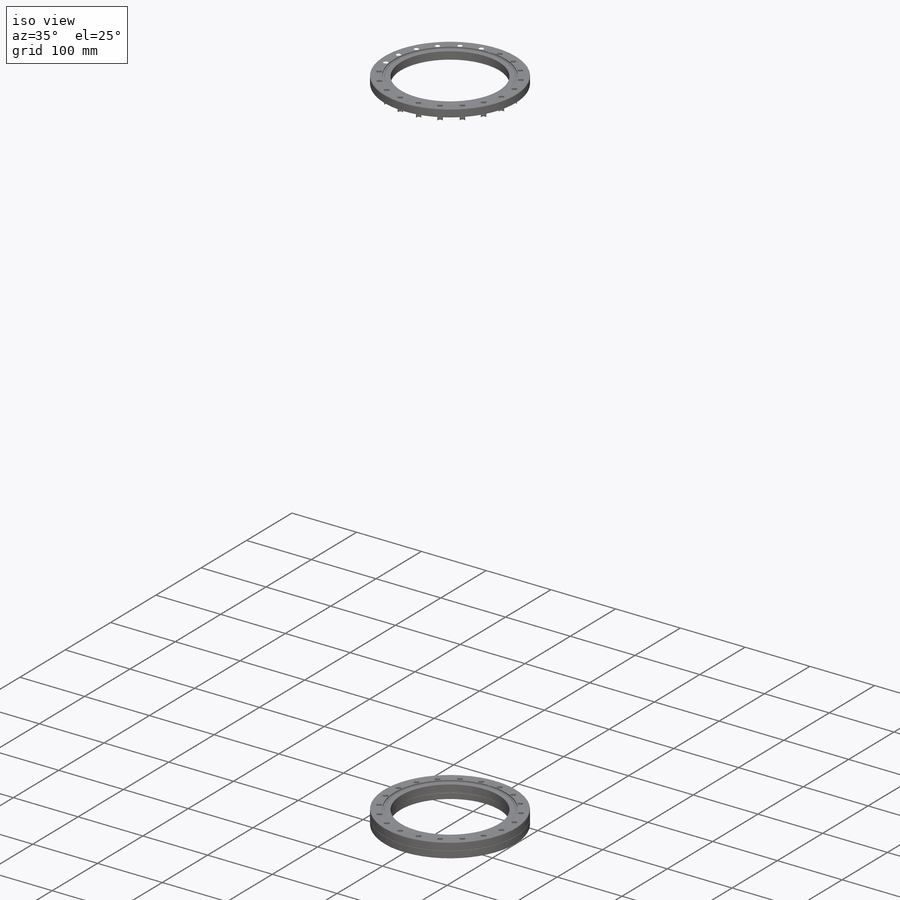
[diagram: iso view]
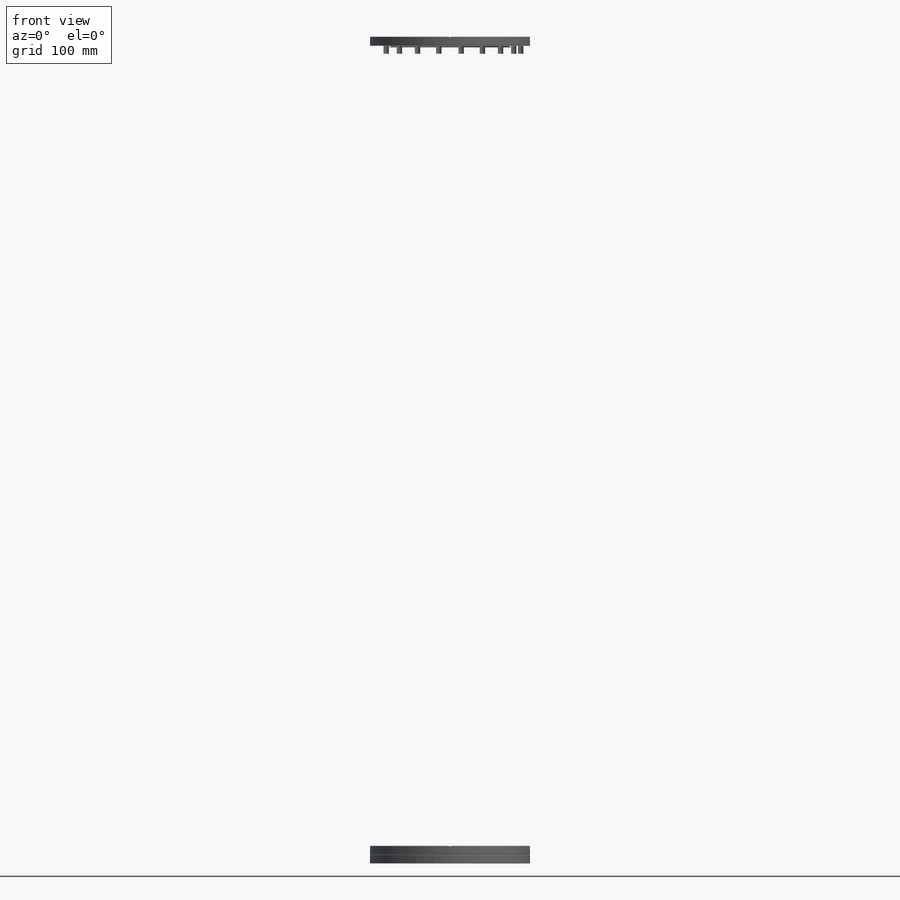
[diagram: front view]
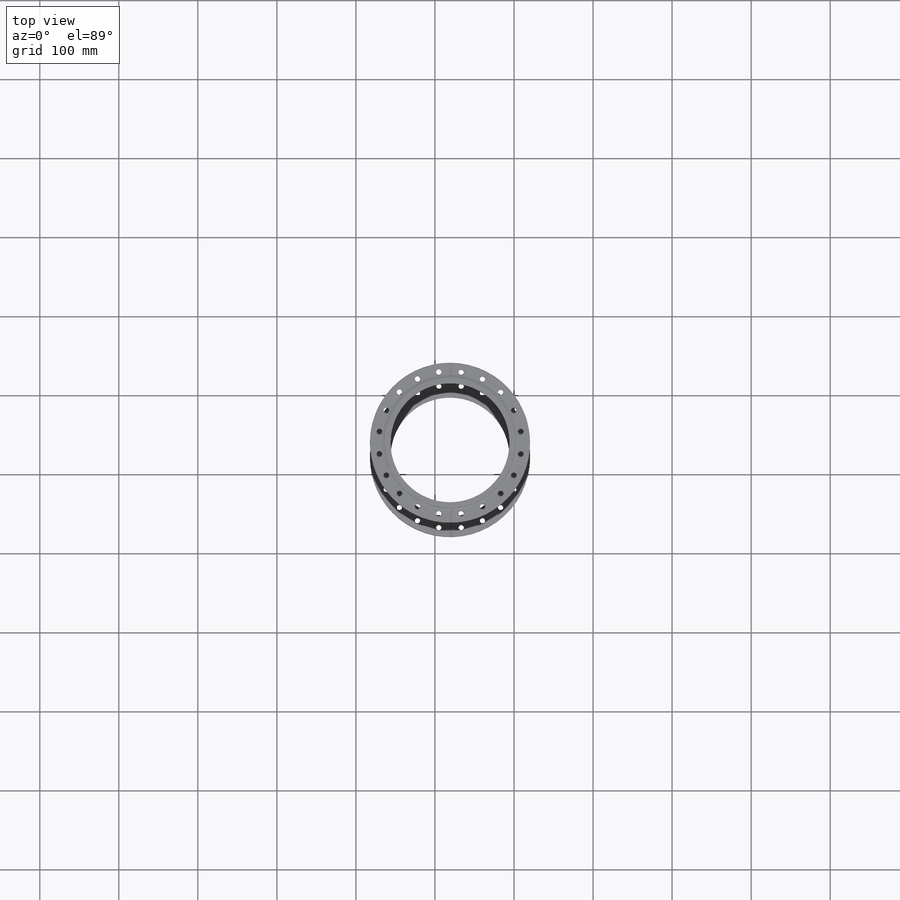
[diagram: top view]
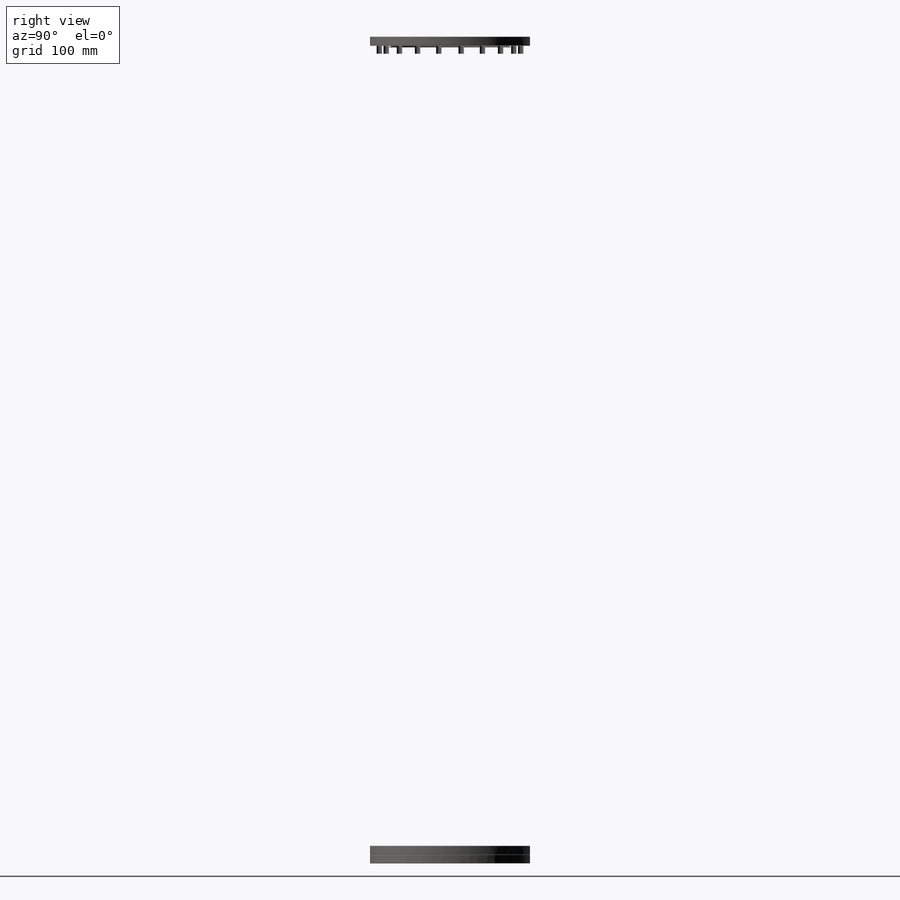
[diagram: right view]
SOLIDWORKS PART (.sldprt)
format: sldprt  version: not decoded by parser v0  size: 2,278,912 bytes
history: native  units: mm
features: sketch x6, move_body x4, extrude x2, hole x2, material x1, cut_extrude x1 + 5 further entries (+37 scaffold rows collapsed; 25 parser-record rows omitted)
feature tree (83):
  scaffold x37  (default folders/planes/origin — collapsed)
  material  "AISI 316 Stainless Steel Sheet (SS)"
  sketch  "Sketch1"  dims[D1=1000.0mm D2=600.0mm D3=20.0mm D4=20.0mm D5=20.0mm D6=20.0mm]
  extrude  "Boss-Extrude1"  Depth=600mm
  sketch  "Sketch2"
  extrude  "Boss-Extrude2"  Depth=23mm
  "DN_160_CF"
  parser-record x25  (decoder bookkeeping rows leaked as tree rows — omitted from the tree; the rows remain in map.json)
  sketch  "Sketch3"  dims[c1.D1=202.44mm c1.D2=301.0mm c1.D3=~433.789103mm c2.D3=90.0deg c3.D3=301.0mm]
  cut_extrude  "Cut-Extrude1"  [1 undecoded]
  sketch  "Sketch4"  dims[D1=304.04mm D2=301.0mm D3=301.0mm]
  hole  "Hole2"  [1 undecoded]
  sketch  "Sketch5"  dims[D1=304.04mm D2=301.0mm D3=301.0mm]
  move_body  "Body-Move/Copy8"
  "DN_250"
  move_body  "Parallel4"
  "DN_2502"
  move_body  "Parallel5"
  hole  "Hole3"  [1 undecoded]
  sketch  "Sketch6"  dims[c1.D1=304.04mm c1.D2=305.0mm c2.D1=250.0mm]
  "DN_2503"
  move_body  "Parallel6"
  "cover"
decode coverage: 7 of 15 modeling features carry decoded parameters; 5 rows unclassified (native names shown)
note: ~ marks probable driven/reference dimensions
note: 3 parameter values undecoded
summary: no parameter record found for 3 features
note: suppression state not decoded; provenance and decode notes live in map.json
